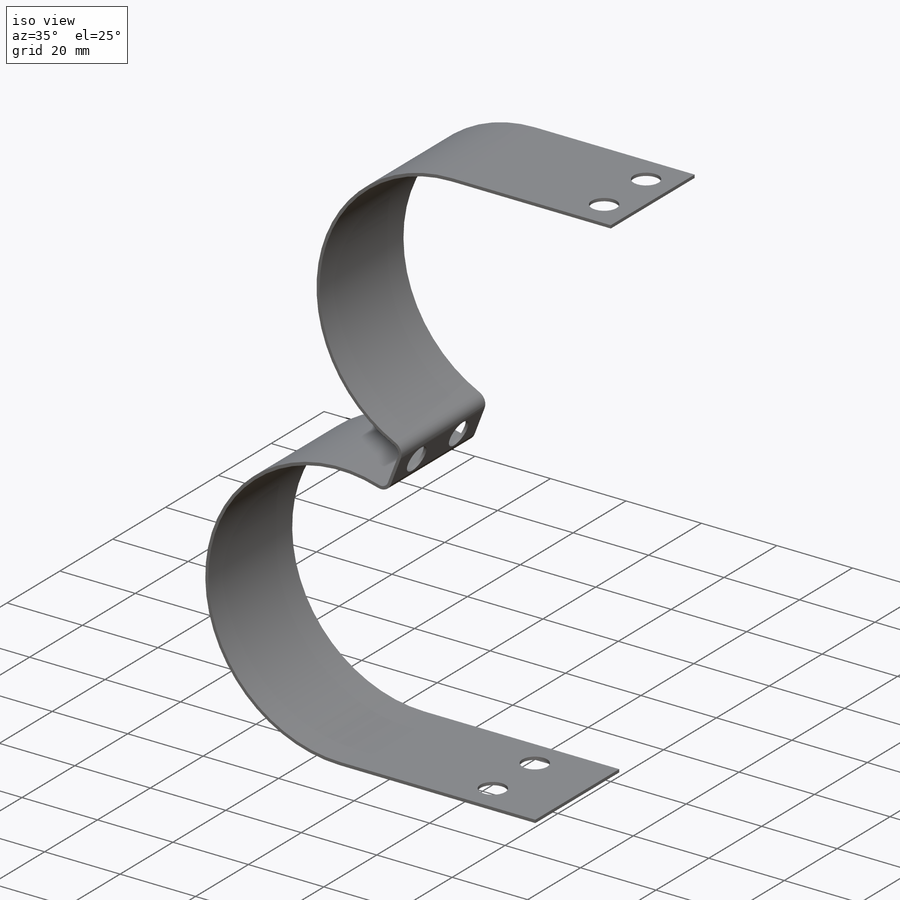
[diagram: iso view]
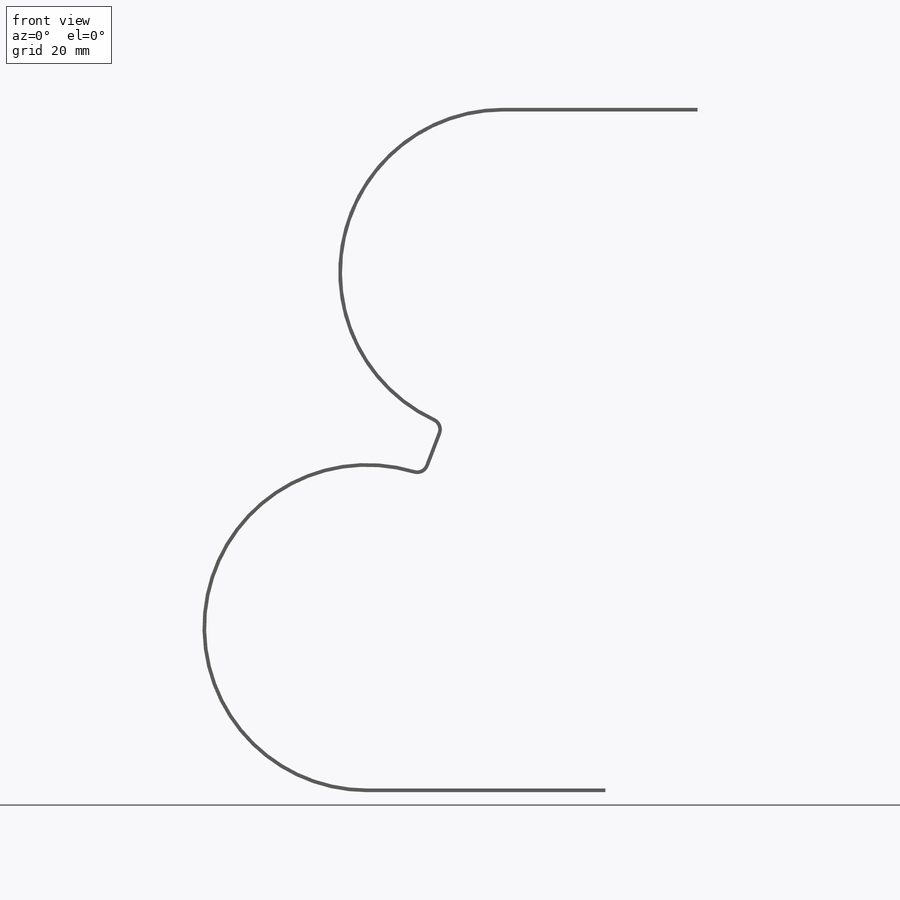
[diagram: front view]
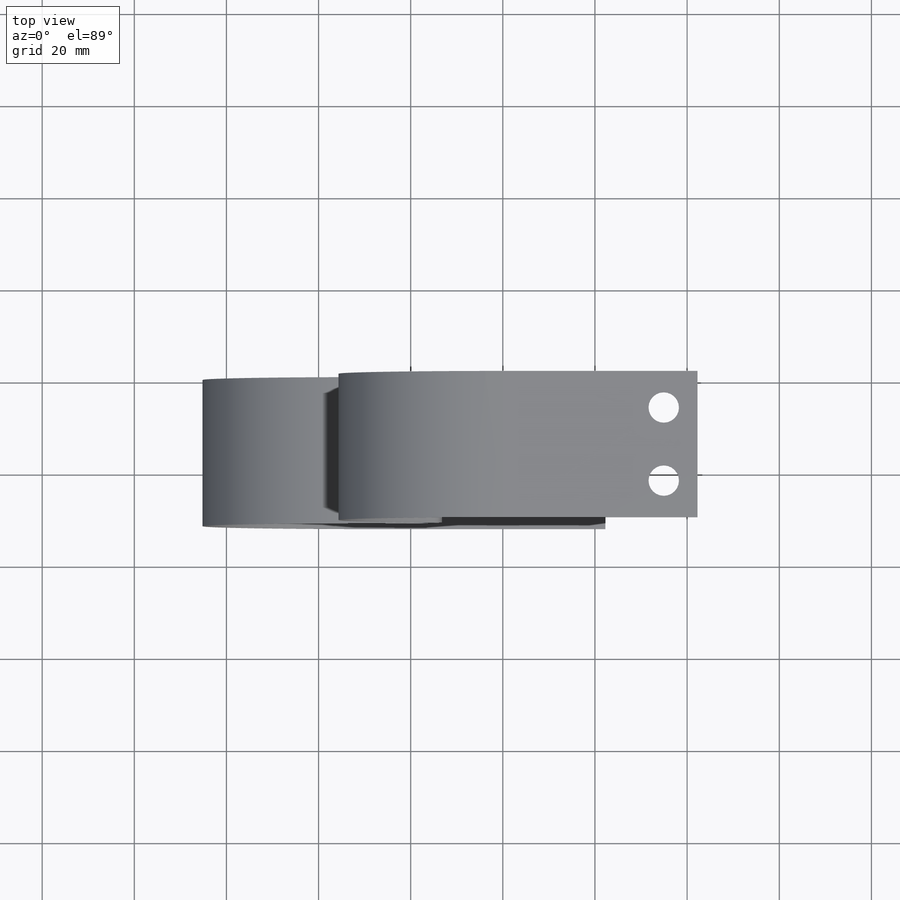
[diagram: top view]
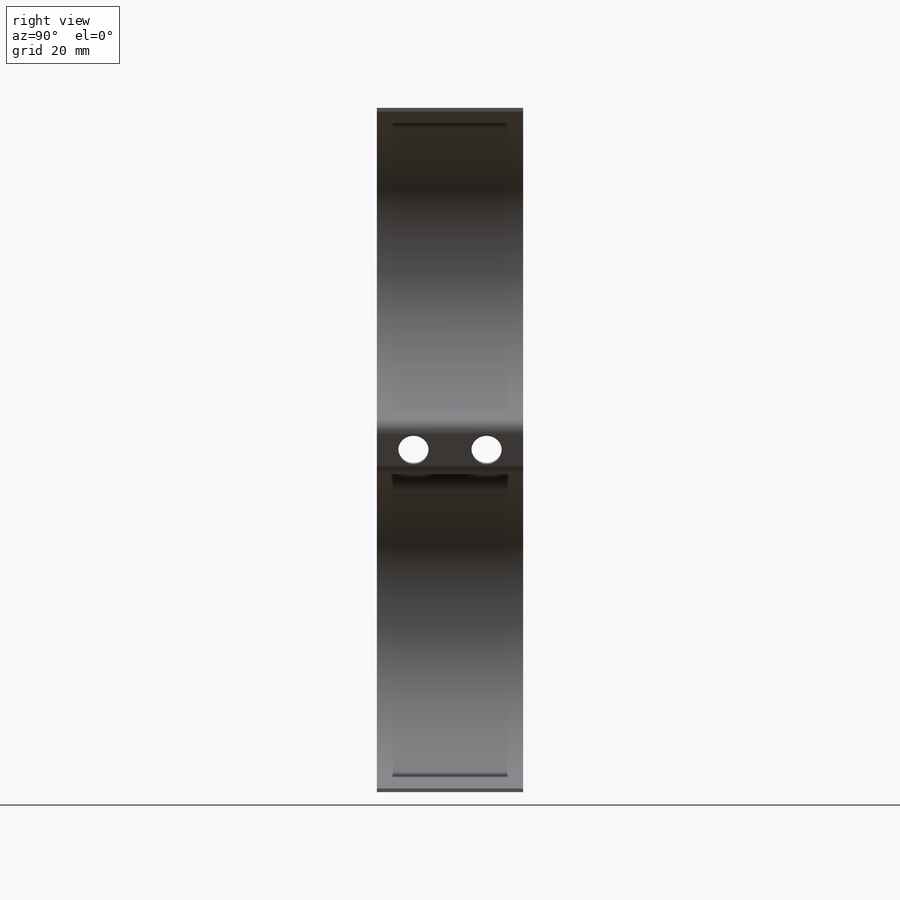
[diagram: right view]
SOLIDWORKS PART (.sldprt)
format: sldprt  version: not decoded by parser v0  size: 245,248 bytes
history: native  units: mm
features: sketch x4, cut_extrude x3, fillet x2, material x1, extrude x1 (+13 scaffold rows collapsed)
feature tree (24):
  scaffold x13  (default folders/planes/origin — collapsed)
  material  "Plain Carbon Steel"
  sketch  "Sketch1"  dims[c1.D1=69.85mm c1.D2=69.85mm c1.D3=82.55mm c1.D5=~75.105505mm c2.D5=~60.474013deg c3.D5=~46.73415mm c4.D5=~110.925987deg c4.D4=~0.79375mm]
  extrude  "Boss-Extrude1"  Depth=31.75mm
  sketch  "Sketch2"  dims[D1=6.604mm D2=6.604mm D3=15.875mm D4=7.9375mm]
  cut_extrude  "Cut-Extrude1"  [1 undecoded]
  sketch  "Sketch3"  dims[D1=6.604mm D2=6.604mm D3=15.875mm D4=7.9375mm D5=34.925mm]
  cut_extrude  "Cut-Extrude2"  Depth=31.75mm
  sketch  "Sketch4"  dims[D1=6.604mm D2=6.604mm D3=15.875mm D4=7.9375mm D5=34.925mm]
  cut_extrude  "Cut-Extrude3"  Depth=31.75mm
  fillet  "Fillet1"  Radius=1.905mm
  fillet  "Fillet2"  Radius=2.69875mm
decode coverage: 9 of 10 modeling features carry decoded parameters
note: ~ marks probable driven/reference dimensions
note: 1 parameter value undecoded
note: suppression state not decoded; provenance and decode notes live in map.json
